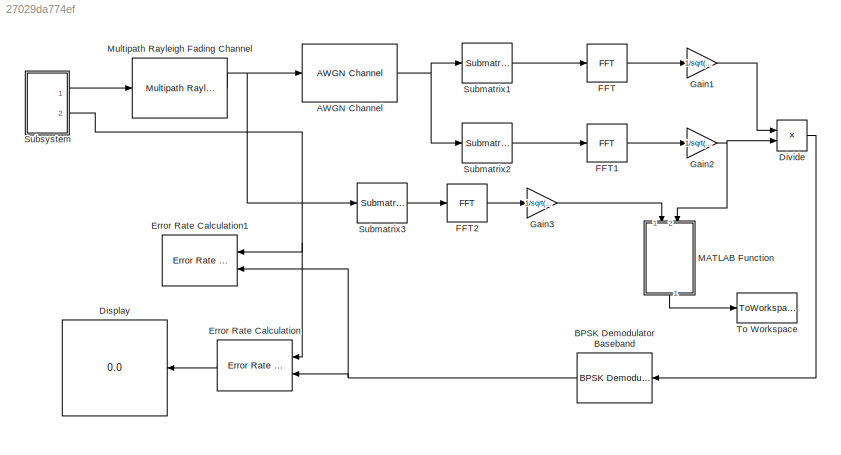
MODEL slx_27029da774ef
KIND model
CONFIG AbsTol = auto
CONFIG FixedStep = auto
CONFIG MaxStep = auto
CONFIG MinStep = auto
CONFIG RelTol = 1e-3
CONFIG SampleTimeConstraint = Unconstrained
CONFIG Solver = VariableStepAuto
CONFIG SolverMode = Auto
CONFIG SolverName = VariableStepAuto
CONFIG StartTime = 0.0
CONFIG StopTime = 1
BLOCK [Reference] AWGN Channel  REF=commchan3/AWGN
Channel
  Ports = [1, 1]
  SourceBlock = commchan3/AWGN\nChannel
  SourceType = AWGN Channel
  UserDataPersistent = on
BLOCK [Reference] BPSK Demodulator Baseband  REF=commdigbbndpm3/BPSK
Demodulator
Baseband
  Ports = [1, 1]
  SourceBlock = commdigbbndpm3/BPSK\nDemodulator\nBaseband
  SourceType = BPSK Demodulator Baseband
BLOCK [Display] Display
  Decimation = 1
  Ports = [1]
BLOCK [Product] Divide
  InputSameDT = off
  Inputs = */
  OutDataTypeStr = Inherit: Inherit via internal rule
  Ports = [2, 1]
  RndMeth = Floor
  SaturateOnIntegerOverflow = off
BLOCK [Reference] Error Rate Calculation  REF=commsink2/Error Rate
Calculation
  Ports = [2, 1]
  SourceBlock = commsink2/Error Rate\nCalculation
  SourceType = Error Rate Calculation
BLOCK [Reference] Error Rate Calculation1  REF=commsink2/Error Rate
Calculation
  Ports = [2]
  SourceBlock = commsink2/Error Rate\nCalculation
  SourceType = Error Rate Calculation
BLOCK [Reference] FFT  REF=dspxfrm3/FFT
  Ports = [1, 1]
  SourceBlock = dspxfrm3/FFT
  SourceType = FFT
BLOCK [Reference] FFT1  REF=dspxfrm3/FFT
  Ports = [1, 1]
  SourceBlock = dspxfrm3/FFT
  SourceType = FFT
BLOCK [Reference] FFT2  REF=dspxfrm3/FFT
  Ports = [1, 1]
  SourceBlock = dspxfrm3/FFT
  SourceType = FFT
BLOCK [Gain] Gain1
  Gain = 1/sqrt(1024)
  OutDataTypeStr = Inherit: Inherit via internal rule
  ParamDataTypeStr = Inherit: Inherit via internal rule
  SaturateOnIntegerOverflow = off
BLOCK [Gain] Gain2
  Gain = 1/sqrt(1024)
  OutDataTypeStr = Inherit: Inherit via internal rule
  ParamDataTypeStr = Inherit: Inherit via internal rule
  SaturateOnIntegerOverflow = off
BLOCK [Gain] Gain3
  Gain = 1/sqrt(1024)
  OutDataTypeStr = Inherit: Inherit via internal rule
  ParamDataTypeStr = Inherit: Inherit via internal rule
  SaturateOnIntegerOverflow = off
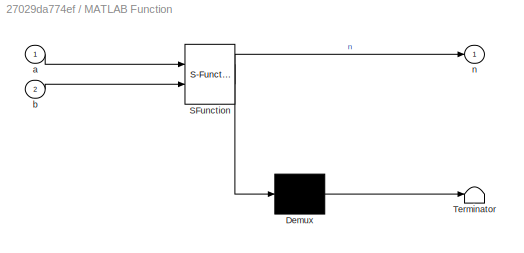
BLOCK [SubSystem] MATLAB Function
  ErrorFcn = Stateflow.Translate.translate
  PermitHierarchicalResolution = ExplicitOnly
  Ports = [2, 1]
  RequestExecContextInheritance = off
  SFBlockType = MATLAB Function
  TreatAsAtomicUnit = on
  Variant = off
BLOCK [Demux] MATLAB Function/ Demux 
  Outputs = 1
  Ports = [1, 1]
BLOCK [S-Function] MATLAB Function/ SFunction 
  EnableBusSupport = on
  FunctionName = sf_sfun
  PortCounts = [2 2]
  Ports = [2, 2]
  SFunctionDeploymentMode = off
  Tag = Stateflow S-Function OFDM 2
BLOCK [Terminator] MATLAB Function/ Terminator 
BLOCK [Inport] MATLAB Function/a
  IconDisplay = Port number
BLOCK [Inport] MATLAB Function/b
  IconDisplay = Port number
  Port = 2
BLOCK [Outport] MATLAB Function/n
  IconDisplay = Port number
BLOCK [Reference] Multipath Rayleigh Fading Channel  REF=commchan3/Multipath Rayleigh
Fading Channel
  Ports = [1, 1]
  SourceBlock = commchan3/Multipath Rayleigh\nFading Channel
  SourceType = Multipath Rayleigh Fading Channel
BLOCK [Reference] Submatrix1  REF=dspmtrx3/Submatrix
  Ports = [1, 1]
  SourceBlock = dspmtrx3/Submatrix
  SourceType = Submatrix
BLOCK [Reference] Submatrix2  REF=dspmtrx3/Submatrix
  Ports = [1, 1]
  SourceBlock = dspmtrx3/Submatrix
  SourceType = Submatrix
BLOCK [Reference] Submatrix3  REF=dspmtrx3/Submatrix
  Ports = [1, 1]
  SourceBlock = dspmtrx3/Submatrix
  SourceType = Submatrix
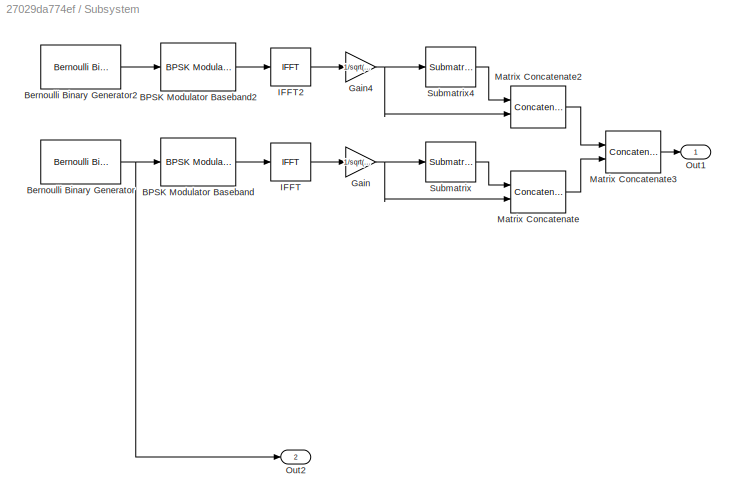
BLOCK [SubSystem] Subsystem
  Ports = [0, 2]
  RequestExecContextInheritance = off
  Variant = off
BLOCK [Reference] Subsystem/BPSK Modulator Baseband  REF=commdigbbndpm3/BPSK
Modulator
Baseband
  Ports = [1, 1]
  SourceBlock = commdigbbndpm3/BPSK\nModulator\nBaseband
  SourceType = BPSK Modulator Baseband
BLOCK [Reference] Subsystem/BPSK Modulator Baseband2  REF=commdigbbndpm3/BPSK
Modulator
Baseband
  Ports = [1, 1]
  SourceBlock = commdigbbndpm3/BPSK\nModulator\nBaseband
  SourceType = BPSK Modulator Baseband
BLOCK [Reference] Subsystem/Bernoulli Binary Generator  REF=commrandsrc2/Bernoulli Binary
Generator
  Ports = [0, 1]
  SourceBlock = commrandsrc2/Bernoulli Binary\nGenerator
  SourceType = Bernoulli Binary Generator
BLOCK [Reference] Subsystem/Bernoulli Binary Generator2  REF=commrandsrc2/Bernoulli Binary
Generator
  Ports = [0, 1]
  SourceBlock = commrandsrc2/Bernoulli Binary\nGenerator
  SourceType = Bernoulli Binary Generator
BLOCK [Gain] Subsystem/Gain
  Gain = 1/sqrt(1024)
  OutDataTypeStr = Inherit: Inherit via internal rule
  ParamDataTypeStr = Inherit: Inherit via internal rule
  SaturateOnIntegerOverflow = off
BLOCK [Gain] Subsystem/Gain4
  Gain = 1/sqrt(1024)
  OutDataTypeStr = Inherit: Inherit via internal rule
  ParamDataTypeStr = Inherit: Inherit via internal rule
  SaturateOnIntegerOverflow = off
BLOCK [Reference] Subsystem/IFFT  REF=dspxfrm3/IFFT
  Ports = [1, 1]
  SourceBlock = dspxfrm3/IFFT
  SourceType = IFFT
BLOCK [Reference] Subsystem/IFFT2  REF=dspxfrm3/IFFT
  Ports = [1, 1]
  SourceBlock = dspxfrm3/IFFT
  SourceType = IFFT
BLOCK [Concatenate] Subsystem/Matrix Concatenate
  Mode = Multidimensional array
  Ports = [2, 1]
BLOCK [Concatenate] Subsystem/Matrix Concatenate2
  Mode = Multidimensional array
  Ports = [2, 1]
BLOCK [Concatenate] Subsystem/Matrix Concatenate3
  Mode = Multidimensional array
  Ports = [2, 1]
BLOCK [Outport] Subsystem/Out1
  IconDisplay = Port number
BLOCK [Outport] Subsystem/Out2
  IconDisplay = Port number
  Port = 2
BLOCK [Reference] Subsystem/Submatrix  REF=dspmtrx3/Submatrix
  Ports = [1, 1]
  SourceBlock = dspmtrx3/Submatrix
  SourceType = Submatrix
BLOCK [Reference] Subsystem/Submatrix4  REF=dspmtrx3/Submatrix
  Ports = [1, 1]
  SourceBlock = dspmtrx3/Submatrix
  SourceType = Submatrix
BLOCK [ToWorkspace] To Workspace
  FixptAsFi = on
  MaxDataPoints = inf
  Ports = [1]
  SampleTime = -1
  VariableName = simout
NET AWGN Channel:1 -> Submatrix1:1, Submatrix2:1
NET BPSK Demodulator Baseband:1 -> Error Rate Calculation1:2, Error Rate Calculation:2
LINE Divide:1 -> BPSK Demodulator Baseband:1
LINE Error Rate Calculation:1 -> Display:1
LINE FFT1:1 -> Gain2:1
LINE FFT2:1 -> Gain3:1
LINE FFT:1 -> Gain1:1
LINE Gain1:1 -> Divide:1
NET Gain2:1 -> Divide:2, MATLAB Function:2
LINE Gain3:1 -> MATLAB Function:1
LINE MATLAB Function:1 -> To Workspace:1
NET Multipath Rayleigh Fading Channel:1 -> AWGN Channel:1, Submatrix3:1
LINE Submatrix1:1 -> FFT:1
LINE Submatrix2:1 -> FFT1:1
LINE Submatrix3:1 -> FFT2:1
LINE Subsystem/BPSK Modulator Baseband2:1 -> Subsystem/IFFT2:1
LINE Subsystem/BPSK Modulator Baseband:1 -> Subsystem/IFFT:1
LINE Subsystem/Bernoulli Binary Generator2:1 -> Subsystem/BPSK Modulator Baseband2:1
NET Subsystem/Bernoulli Binary Generator:1 -> Subsystem/BPSK Modulator Baseband:1, Subsystem/Out2:1
NET Subsystem/Gain4:1 -> Subsystem/Matrix Concatenate2:2, Subsystem/Submatrix4:1
NET Subsystem/Gain:1 -> Subsystem/Matrix Concatenate:2, Subsystem/Submatrix:1
LINE Subsystem/IFFT2:1 -> Subsystem/Gain4:1
LINE Subsystem/IFFT:1 -> Subsystem/Gain:1
LINE Subsystem/Matrix Concatenate2:1 -> Subsystem/Matrix Concatenate3:1
LINE Subsystem/Matrix Concatenate3:1 -> Subsystem/Out1:1
LINE Subsystem/Matrix Concatenate:1 -> Subsystem/Matrix Concatenate3:2
LINE Subsystem/Submatrix4:1 -> Subsystem/Matrix Concatenate2:1
LINE Subsystem/Submatrix:1 -> Subsystem/Matrix Concatenate:1
LINE Subsystem:1 -> Multipath Rayleigh Fading Channel:1
NET Subsystem:2 -> Error Rate Calculation1:1, Error Rate Calculation:1
note: NET lines group one-source signal fan-out (src -> all destinations, sorted); 1:1 wires keep LINE
CHART MATLAB Function states=1 transitions=1
  STATE_LABEL 'eML_blk_kernel()'
  STATE_LABEL 'SCRIPT:\nfunction n= mse(a,b)\n%#codegen\n\nn=sum(abs(a-b).^2)/sum(abs(a).^2);'
